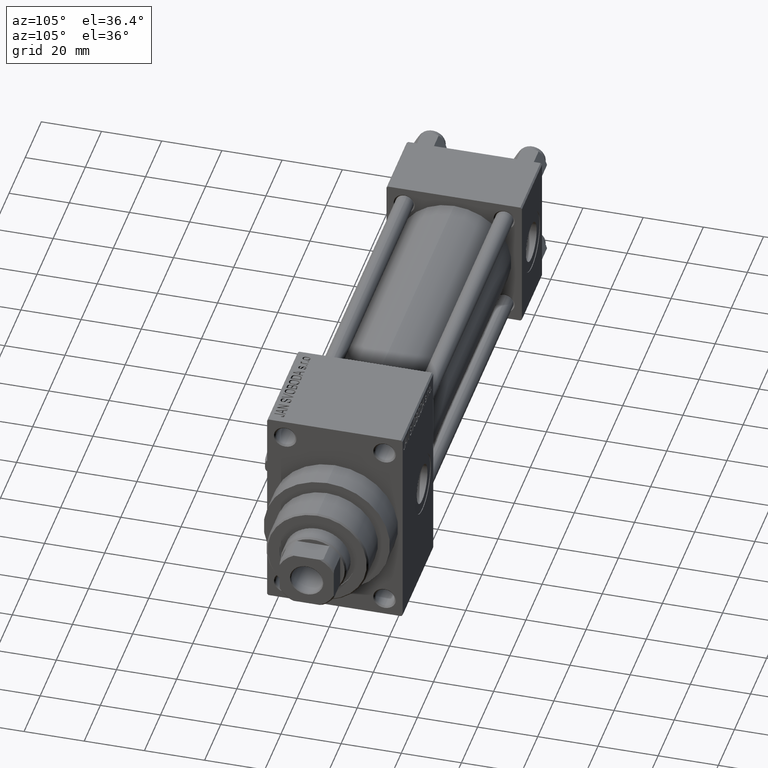
[diagram: clean part render]
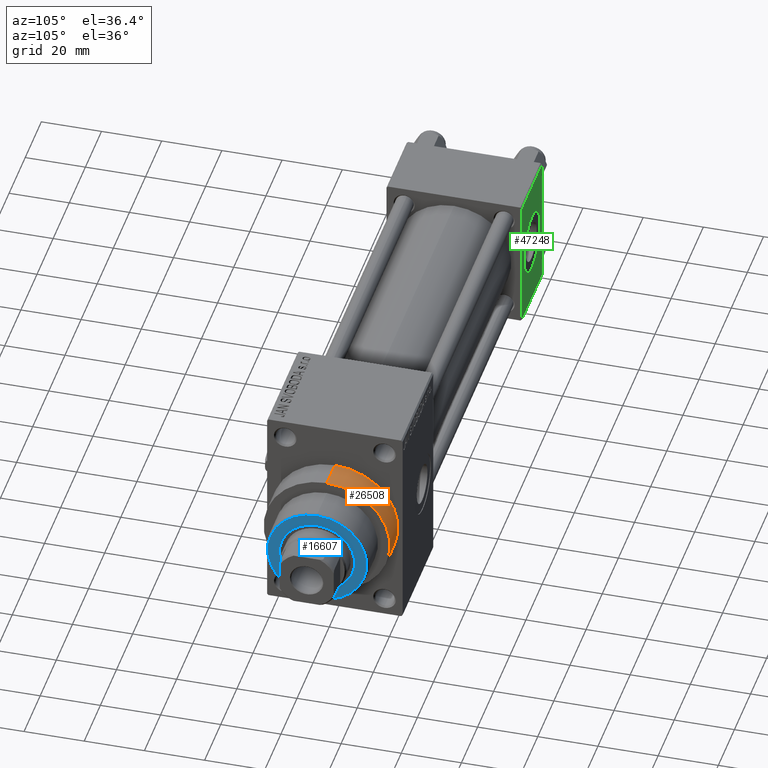
[diagram: same view with three faces highlighted in distinct colors, each labeled with its STEP entity id]
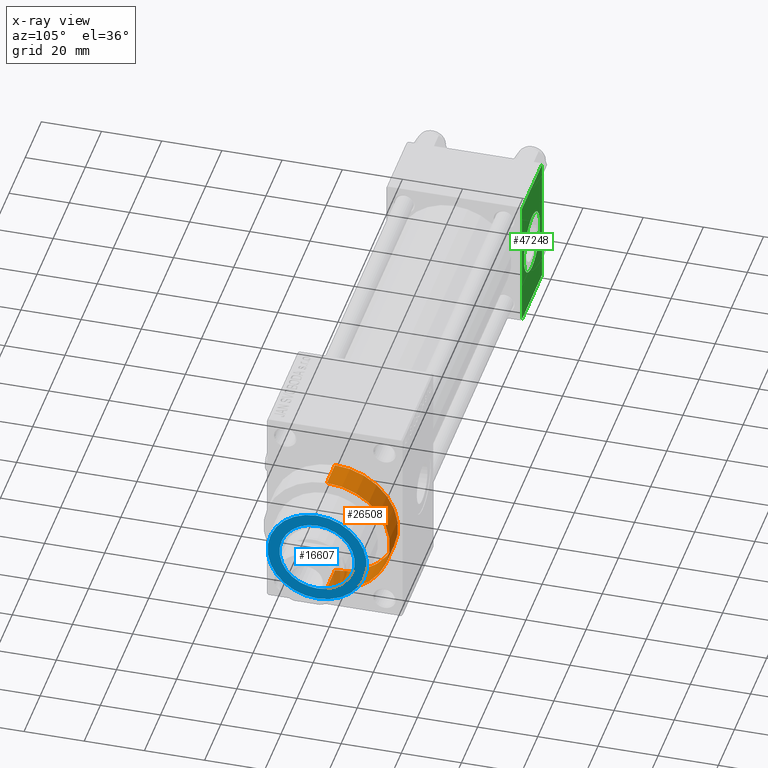
[diagram: x-ray of the same camera — body ghosted, the three highlighted faces saturated]
A machine part, auxiliary view with three faces highlighted in distinct colors.
The next image is the same camera in x-ray (body ghosted, the three faces saturated) — at least one of them is partly hidden behind the body in this view.
Their STEP definitions:

[orange] entity #26508 — the highlighted cylindrical surface (partial cylindrical patch) has radius 21 mm, axis along (-1, -0, -0).
#551 = CARTESIAN_POINT ( 'NONE',  ( 183.0000000000000284, 0.000000000000000000, 0.000000000000000000 ) ) ;
#2609 = DIRECTION ( 'NONE',  ( -1.000000000000000000, -0.000000000000000000, -0.000000000000000000 ) ) ;
#2974 = CARTESIAN_POINT ( 'NONE',  ( 183.0000000000000284, 2.571758278209441661E-15, -21.00000000000000000 ) ) ;
#3487 = CARTESIAN_POINT ( 'NONE',  ( 183.0000000000000284, 0.000000000000000000, 21.00000000000000000 ) ) ;
#4507 = DIRECTION ( 'NONE',  ( 0.000000000000000000, 0.000000000000000000, -1.000000000000000000 ) ) ;
#7065 = DIRECTION ( 'NONE',  ( 0.000000000000000000, 0.000000000000000000, 1.000000000000000000 ) ) ;
#9394 = ORIENTED_EDGE ( 'NONE', *, *, #34818, .T. ) ;
#11145 = DIRECTION ( 'NONE',  ( -1.000000000000000000, -0.000000000000000000, -0.000000000000000000 ) ) ;
#11201 = EDGE_CURVE ( 'NONE', #32539, #23942, #29788, .T. ) ;
#12282 = AXIS2_PLACEMENT_3D ( 'NONE', #29301, #2609, #7065 ) ;
#14470 = CYLINDRICAL_SURFACE ( 'NONE', #12282, 21.00000000000000000 ) ;
#14640 = EDGE_CURVE ( 'NONE', #15767, #47846, #29144, .T. ) ;
#15767 = VERTEX_POINT ( 'NONE', #2974 ) ;
#17038 = DIRECTION ( 'NONE',  ( 0.000000000000000000, 0.000000000000000000, -1.000000000000000000 ) ) ;
#20021 = VECTOR ( 'NONE', #11145, 1000.000000000000000 ) ;
#20913 = EDGE_CURVE ( 'NONE', #47846, #23942, #22273, .T. ) ;
#21118 = AXIS2_PLACEMENT_3D ( 'NONE', #21236, #35783, #17038 ) ;
#21236 = CARTESIAN_POINT ( 'NONE',  ( 173.0000000000000284, 0.000000000000000000, 0.000000000000000000 ) ) ;
#21608 = CARTESIAN_POINT ( 'NONE',  ( 183.0000000000000284, 2.571758278209441661E-15, -21.00000000000000000 ) ) ;
#22273 = LINE ( 'NONE', #3487, #20021 ) ;
#23942 = VERTEX_POINT ( 'NONE', #31672 ) ;
#25594 = FACE_OUTER_BOUND ( 'NONE', #47203, .T. ) ;
#26508 = ADVANCED_FACE ( 'NONE', ( #25594 ), #14470, .T. ) ;
#26994 = DIRECTION ( 'NONE',  ( 1.000000000000000000, 0.000000000000000000, 0.000000000000000000 ) ) ;
#27911 = ORIENTED_EDGE ( 'NONE', *, *, #20913, .F. ) ;
#29144 = CIRCLE ( 'NONE', #30725, 21.00000000000000000 ) ;
#29301 = CARTESIAN_POINT ( 'NONE',  ( 183.0000000000000284, 0.000000000000000000, 0.000000000000000000 ) ) ;
#29788 = CIRCLE ( 'NONE', #21118, 21.00000000000000000 ) ;
#30725 = AXIS2_PLACEMENT_3D ( 'NONE', #551, #26994, #4507 ) ;
#31672 = CARTESIAN_POINT ( 'NONE',  ( 173.0000000000000284, 0.000000000000000000, 21.00000000000000000 ) ) ;
#32099 = CARTESIAN_POINT ( 'NONE',  ( 173.0000000000000284, 2.571758278209441661E-15, -21.00000000000000000 ) ) ;
#32539 = VERTEX_POINT ( 'NONE', #32099 ) ;
#33251 = ORIENTED_EDGE ( 'NONE', *, *, #14640, .F. ) ;
#34818 = EDGE_CURVE ( 'NONE', #15767, #32539, #44035, .T. ) ;
#35783 = DIRECTION ( 'NONE',  ( 1.000000000000000000, 0.000000000000000000, 0.000000000000000000 ) ) ;
#41605 = VECTOR ( 'NONE', #43305, 1000.000000000000000 ) ;
#43305 = DIRECTION ( 'NONE',  ( -1.000000000000000000, -0.000000000000000000, -0.000000000000000000 ) ) ;
#44035 = LINE ( 'NONE', #21608, #41605 ) ;
#46060 = ORIENTED_EDGE ( 'NONE', *, *, #11201, .T. ) ;
#47203 = EDGE_LOOP ( 'NONE', ( #33251, #9394, #46060, #27911 ) ) ;
#47846 = VERTEX_POINT ( 'NONE', #48670 ) ;
#48670 = CARTESIAN_POINT ( 'NONE',  ( 183.0000000000000284, 0.000000000000000000, 21.00000000000000000 ) ) ;

[blue] entity #16607 — the highlighted planar face has unit normal (1, -0, -0).
#153 = CARTESIAN_POINT ( 'NONE',  ( 0.000000000000000000, 0.000000000000000000, 55.26000000000000512 ) ) ;
#390 = DIRECTION ( 'NONE',  ( 0.000000000000000000, 0.000000000000000000, 1.000000000000000000 ) ) ;
#809 = AXIS2_PLACEMENT_3D ( 'NONE', #153, #390, #22645 ) ;
#2592 = CARTESIAN_POINT ( 'NONE',  ( 12.50000000000000000, 0.000000000000000000, 55.26000000000000512 ) ) ;
#4232 = VERTEX_POINT ( 'NONE', #2592 ) ;
#4527 = ORIENTED_EDGE ( 'NONE', *, *, #38997, .F. ) ;
#8082 = DIRECTION ( 'NONE',  ( 1.000000000000000000, 0.000000000000000000, 0.000000000000000000 ) ) ;
#11072 = CIRCLE ( 'NONE', #809, 16.50000000000001421 ) ;
#12949 = AXIS2_PLACEMENT_3D ( 'NONE', #19943, #19702, #8082 ) ;
#14142 = ORIENTED_EDGE ( 'NONE', *, *, #46296, .T. ) ;
#15925 = FACE_OUTER_BOUND ( 'NONE', #40098, .T. ) ;
#16607 = ADVANCED_FACE ( 'NONE', ( #43031, #15925 ), #24790, .T. ) ;
#17264 = VERTEX_POINT ( 'NONE', #40316 ) ;
#18369 = CIRCLE ( 'NONE', #23863, 16.50000000000001421 ) ;
#19702 = DIRECTION ( 'NONE',  ( 0.000000000000000000, 0.000000000000000000, 1.000000000000000000 ) ) ;
#19723 = AXIS2_PLACEMENT_3D ( 'NONE', #43128, #24166, #28358 ) ;
#19852 = CARTESIAN_POINT ( 'NONE',  ( -12.50000000000000000, 1.530808498934191521E-15, 55.26000000000000512 ) ) ;
#19943 = CARTESIAN_POINT ( 'NONE',  ( 0.000000000000000000, 0.000000000000000000, 55.26000000000000512 ) ) ;
#21718 = CARTESIAN_POINT ( 'NONE',  ( 16.50000000000001421, 2.051283388571817281E-15, 55.26000000000000512 ) ) ;
#22645 = DIRECTION ( 'NONE',  ( 1.000000000000000000, 0.000000000000000000, 0.000000000000000000 ) ) ;
#23063 = VERTEX_POINT ( 'NONE', #21718 ) ;
#23230 = EDGE_CURVE ( 'NONE', #28902, #4232, #48393, .T. ) ;
#23305 = ORIENTED_EDGE ( 'NONE', *, *, #23230, .F. ) ;
#23863 = AXIS2_PLACEMENT_3D ( 'NONE', #29409, #41209, #25455 ) ;
#24166 = DIRECTION ( 'NONE',  ( 0.000000000000000000, 0.000000000000000000, 1.000000000000000000 ) ) ;
#24479 = EDGE_LOOP ( 'NONE', ( #4527, #23305 ) ) ;
#24550 = DIRECTION ( 'NONE',  ( 1.000000000000000000, 0.000000000000000000, -0.000000000000000000 ) ) ;
#24790 = PLANE ( 'NONE',  #26075 ) ;
#25285 = DIRECTION ( 'NONE',  ( 0.000000000000000000, 0.000000000000000000, 1.000000000000000000 ) ) ;
#25455 = DIRECTION ( 'NONE',  ( 1.000000000000000000, 0.000000000000000000, 0.000000000000000000 ) ) ;
#26075 = AXIS2_PLACEMENT_3D ( 'NONE', #32447, #25285, #24550 ) ;
#28358 = DIRECTION ( 'NONE',  ( 1.000000000000000000, 0.000000000000000000, 0.000000000000000000 ) ) ;
#28902 = VERTEX_POINT ( 'NONE', #19852 ) ;
#29409 = CARTESIAN_POINT ( 'NONE',  ( 0.000000000000000000, 0.000000000000000000, 55.26000000000000512 ) ) ;
#32296 = CIRCLE ( 'NONE', #19723, 12.50000000000000000 ) ;
#32447 = CARTESIAN_POINT ( 'NONE',  ( 0.000000000000000000, 0.000000000000000000, 55.26000000000000512 ) ) ;
#34963 = ORIENTED_EDGE ( 'NONE', *, *, #39194, .T. ) ;
#38997 = EDGE_CURVE ( 'NONE', #4232, #28902, #32296, .T. ) ;
#39194 = EDGE_CURVE ( 'NONE', #17264, #23063, #11072, .T. ) ;
#40098 = EDGE_LOOP ( 'NONE', ( #34963, #14142 ) ) ;
#40316 = CARTESIAN_POINT ( 'NONE',  ( -16.50000000000001421, 0.000000000000000000, 55.26000000000000512 ) ) ;
#41209 = DIRECTION ( 'NONE',  ( 0.000000000000000000, 0.000000000000000000, 1.000000000000000000 ) ) ;
#43031 = FACE_BOUND ( 'NONE', #24479, .T. ) ;
#43128 = CARTESIAN_POINT ( 'NONE',  ( 0.000000000000000000, 0.000000000000000000, 55.26000000000000512 ) ) ;
#46296 = EDGE_CURVE ( 'NONE', #23063, #17264, #18369, .T. ) ;
#48393 = CIRCLE ( 'NONE', #12949, 12.50000000000000000 ) ;

[green] entity #47248 — the highlighted planar face has unit normal (0, 1, 0).
#1156 = DIRECTION ( 'NONE',  ( 0.000000000000000000, -0.000000000000000000, 1.000000000000000000 ) ) ;
#1870 = CARTESIAN_POINT ( 'NONE',  ( 25.00000000000000000, 22.50000000000000000, 22.50000000000000355 ) ) ;
#1902 = AXIS2_PLACEMENT_3D ( 'NONE', #47806, #18482, #48790 ) ;
#2124 = FACE_OUTER_BOUND ( 'NONE', #25670, .T. ) ;
#2457 = VERTEX_POINT ( 'NONE', #15003 ) ;
#2786 = DIRECTION ( 'NONE',  ( 0.000000000000000000, 1.000000000000000000, 0.000000000000000000 ) ) ;
#3335 = AXIS2_PLACEMENT_3D ( 'NONE', #12279, #47011, #1156 ) ;
#7710 = CARTESIAN_POINT ( 'NONE',  ( 0.000000000000000000, 22.50000000000000000, -21.99999999999996803 ) ) ;
#7713 = EDGE_CURVE ( 'NONE', #2457, #45406, #31910, .T. ) ;
#8373 = CARTESIAN_POINT ( 'NONE',  ( 25.00000000000000000, 22.50000000000000000, 21.99999999999999645 ) ) ;
#10802 = VECTOR ( 'NONE', #39294, 1000.000000000000000 ) ;
#11474 = CARTESIAN_POINT ( 'NONE',  ( 12.50000000000000178, 22.50000000000000000, -9.999999999999996447 ) ) ;
#12007 = ORIENTED_EDGE ( 'NONE', *, *, #23122, .F. ) ;
#12024 = EDGE_CURVE ( 'NONE', #36900, #35857, #42397, .T. ) ;
#12174 = VECTOR ( 'NONE', #37016, 1000.000000000000000 ) ;
#12279 = CARTESIAN_POINT ( 'NONE',  ( 25.00000000000000000, 22.50000000000000000, 22.50000000000000355 ) ) ;
#12487 = CARTESIAN_POINT ( 'NONE',  ( 25.00000000000000000, 22.50000000000000000, -21.99999999999996803 ) ) ;
#14544 = CARTESIAN_POINT ( 'NONE',  ( 0.000000000000000000, 22.50000000000000000, 22.50000000000000355 ) ) ;
#14923 = ORIENTED_EDGE ( 'NONE', *, *, #12024, .F. ) ;
#15003 = CARTESIAN_POINT ( 'NONE',  ( 0.000000000000000000, 22.50000000000000000, 21.99999999999999645 ) ) ;
#18360 = DIRECTION ( 'NONE',  ( 0.000000000000000000, 0.000000000000000000, 1.000000000000000000 ) ) ;
#18482 = DIRECTION ( 'NONE',  ( 0.000000000000000000, 1.000000000000000000, 0.000000000000000000 ) ) ;
#21016 = DIRECTION ( 'NONE',  ( -1.000000000000000000, 0.000000000000000000, 0.000000000000000000 ) ) ;
#22953 = EDGE_CURVE ( 'NONE', #2457, #36054, #37492, .T. ) ;
#23122 = EDGE_CURVE ( 'NONE', #35857, #36900, #45250, .T. ) ;
#24703 = CARTESIAN_POINT ( 'NONE',  ( 25.00000000000000000, 22.50000000000000000, -21.99999999999998224 ) ) ;
#25670 = EDGE_LOOP ( 'NONE', ( #25875, #31222, #41624, #35624 ) ) ;
#25748 = VERTEX_POINT ( 'NONE', #12487 ) ;
#25875 = ORIENTED_EDGE ( 'NONE', *, *, #42000, .T. ) ;
#28070 = FACE_BOUND ( 'NONE', #35301, .T. ) ;
#29474 = CARTESIAN_POINT ( 'NONE',  ( 12.50000000000000000, 22.50000000000000000, 0.000000000000000000 ) ) ;
#30263 = VECTOR ( 'NONE', #21016, 1000.000000000000000 ) ;
#30804 = DIRECTION ( 'NONE',  ( 0.000000000000000000, 0.000000000000000000, -1.000000000000000000 ) ) ;
#31222 = ORIENTED_EDGE ( 'NONE', *, *, #45072, .T. ) ;
#31643 = LINE ( 'NONE', #24703, #30263 ) ;
#31910 = LINE ( 'NONE', #38575, #10802 ) ;
#35301 = EDGE_LOOP ( 'NONE', ( #12007, #14923 ) ) ;
#35476 = PLANE ( 'NONE',  #3335 ) ;
#35624 = ORIENTED_EDGE ( 'NONE', *, *, #7713, .T. ) ;
#35857 = VERTEX_POINT ( 'NONE', #39083 ) ;
#36054 = VERTEX_POINT ( 'NONE', #7710 ) ;
#36900 = VERTEX_POINT ( 'NONE', #11474 ) ;
#36918 = AXIS2_PLACEMENT_3D ( 'NONE', #29474, #2786, #18360 ) ;
#37016 = DIRECTION ( 'NONE',  ( 0.000000000000000000, 0.000000000000000000, -1.000000000000000000 ) ) ;
#37492 = LINE ( 'NONE', #14544, #12174 ) ;
#38575 = CARTESIAN_POINT ( 'NONE',  ( 25.00000000000000000, 22.50000000000000000, 21.99999999999999645 ) ) ;
#39083 = CARTESIAN_POINT ( 'NONE',  ( 12.50000000000000000, 22.50000000000000000, 9.999999999999996447 ) ) ;
#39294 = DIRECTION ( 'NONE',  ( 1.000000000000000000, 0.000000000000000000, 0.000000000000000000 ) ) ;
#41083 = VECTOR ( 'NONE', #30804, 1000.000000000000000 ) ;
#41624 = ORIENTED_EDGE ( 'NONE', *, *, #22953, .F. ) ;
#42000 = EDGE_CURVE ( 'NONE', #45406, #25748, #42373, .T. ) ;
#42373 = LINE ( 'NONE', #1870, #41083 ) ;
#42397 = CIRCLE ( 'NONE', #36918, 9.999999999999996447 ) ;
#45072 = EDGE_CURVE ( 'NONE', #25748, #36054, #31643, .T. ) ;
#45250 = CIRCLE ( 'NONE', #1902, 9.999999999999996447 ) ;
#45406 = VERTEX_POINT ( 'NONE', #8373 ) ;
#47011 = DIRECTION ( 'NONE',  ( -0.000000000000000000, 1.000000000000000000, 0.000000000000000000 ) ) ;
#47248 = ADVANCED_FACE ( 'NONE', ( #28070, #2124 ), #35476, .T. ) ;
#47806 = CARTESIAN_POINT ( 'NONE',  ( 12.50000000000000000, 22.50000000000000000, 0.000000000000000000 ) ) ;
#48790 = DIRECTION ( 'NONE',  ( 0.000000000000000000, 0.000000000000000000, 1.000000000000000000 ) ) ;